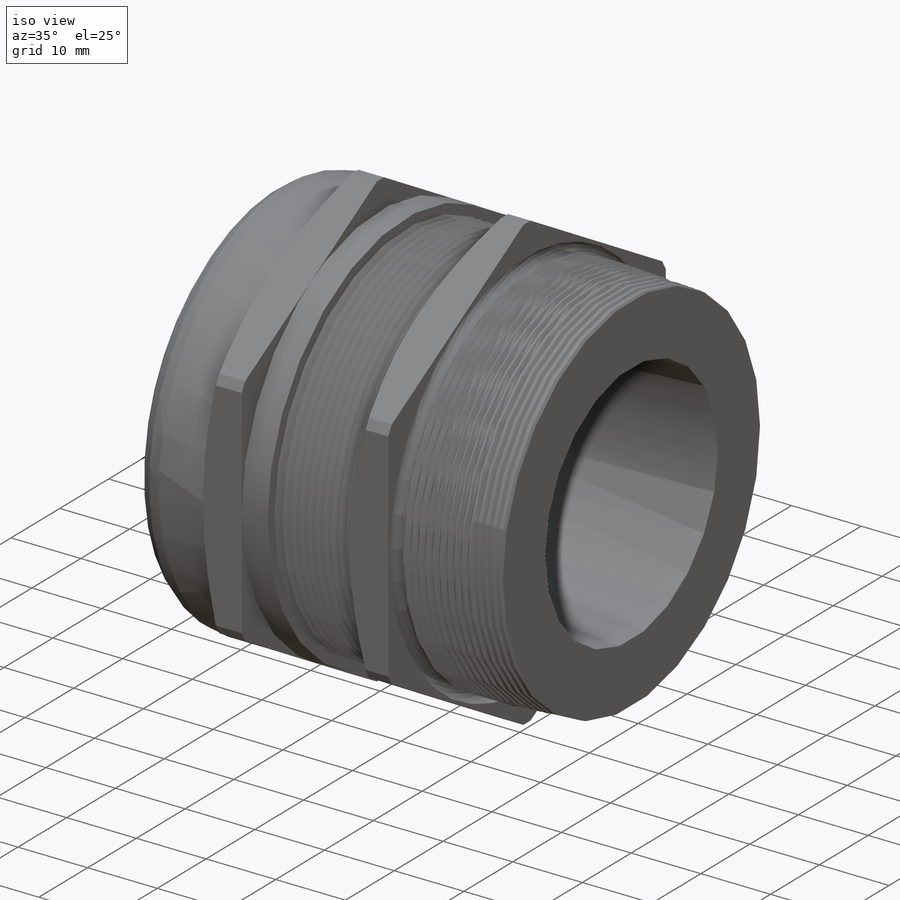
[diagram: iso view]
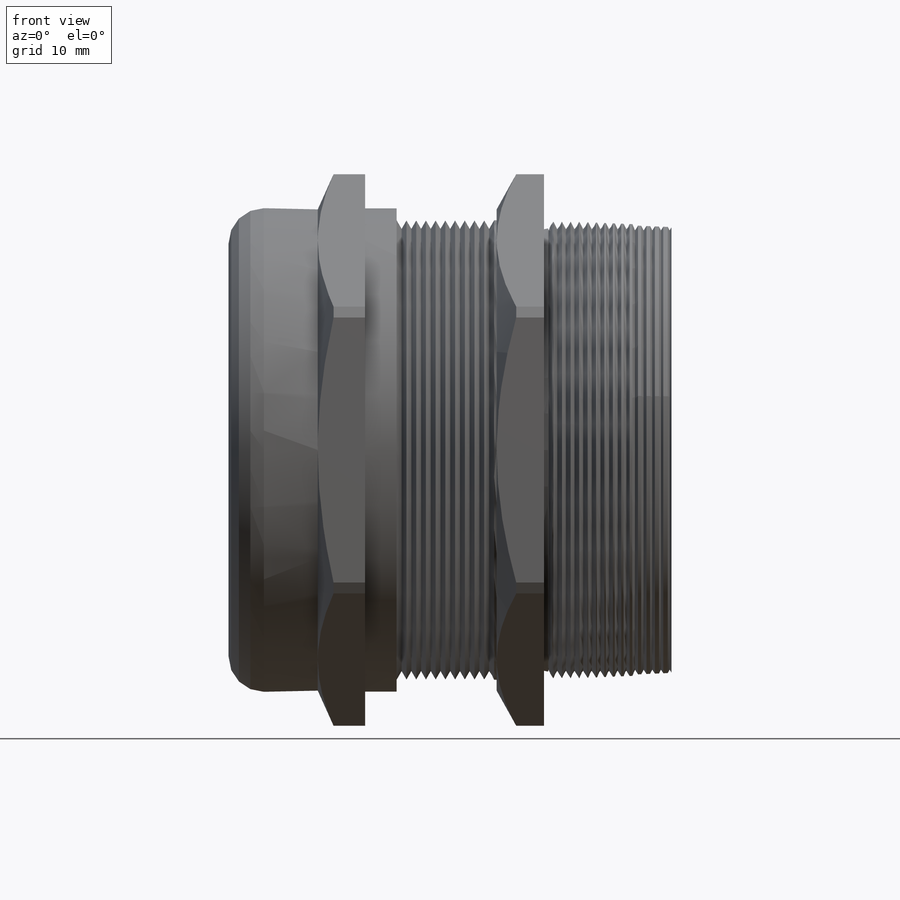
[diagram: front view]
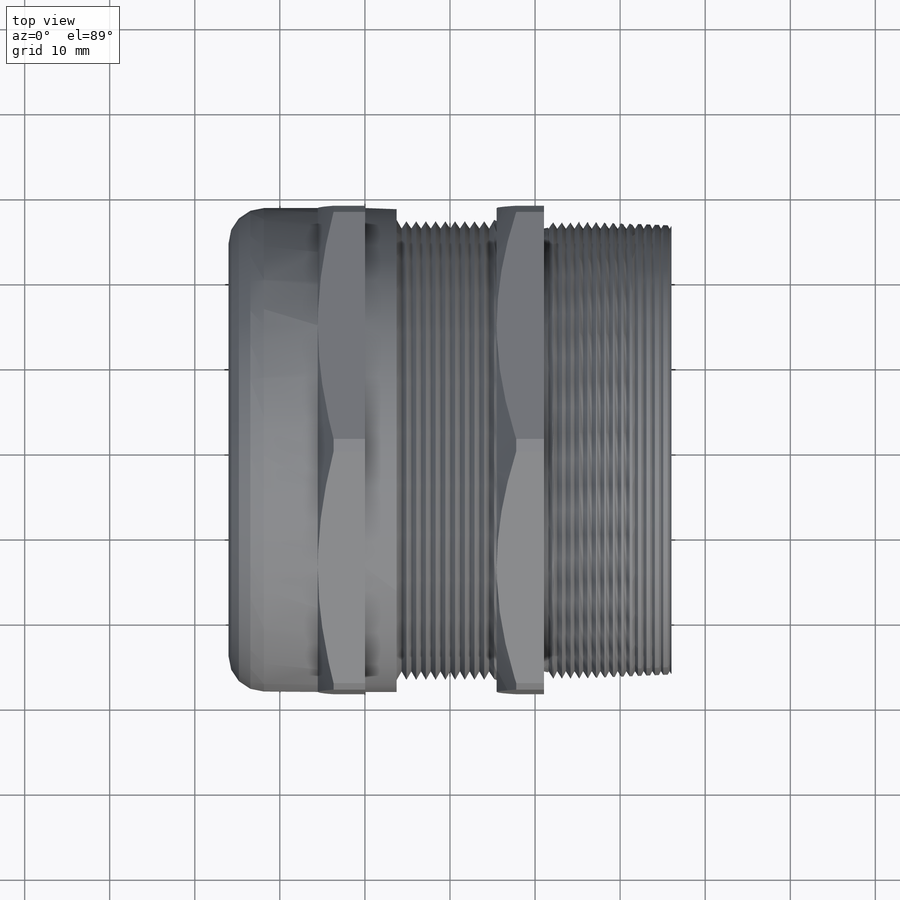
[diagram: top view]
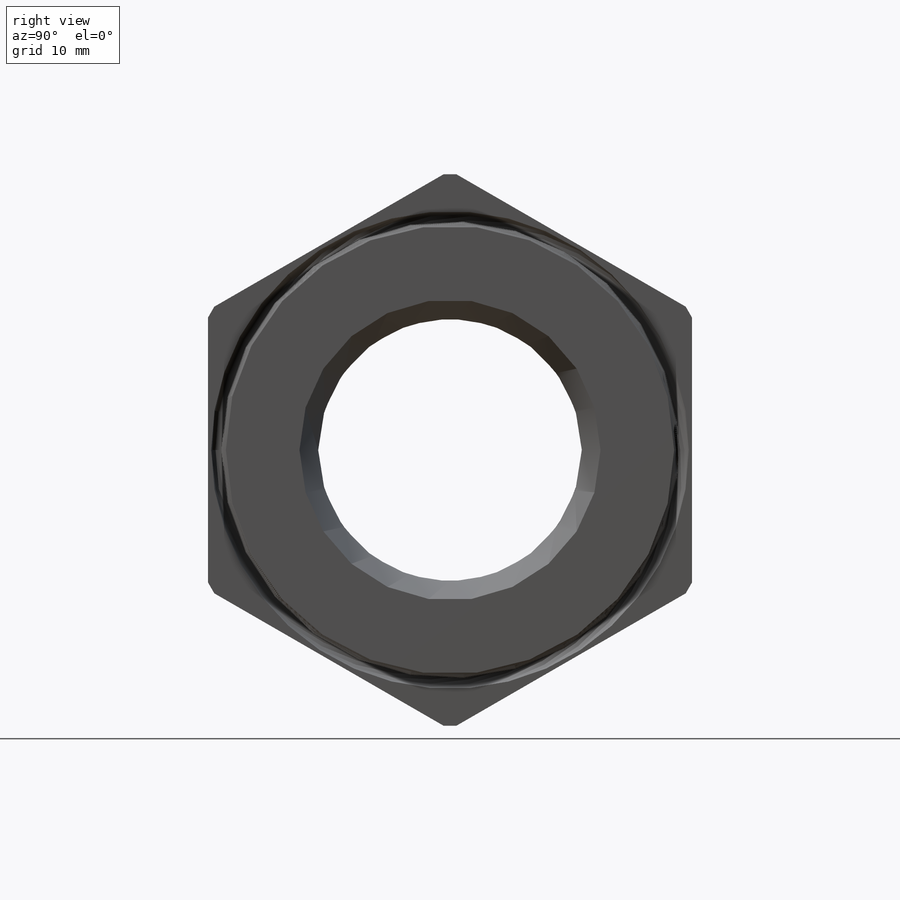
[diagram: right view]
SOLIDWORKS PART (.sldprt)
format: sldprt  version: not decoded by parser v0  size: 717,824 bytes
history: native  units: mm
features: sketch x15, revolve x4, cut_extrude x4, cut_revolve x3, pattern_linear x2, fillet x2, extrude x2, material x1, helix x1, plane x1, sweep x1, chamfer x1 + 1 further entry (+14 scaffold rows collapsed; 1 parser-record rows omitted)
feature tree (53):
  scaffold x14  (default folders/planes/origin — collapsed)
  material  "Material <not specified>"
  "Design Table"
  sketch  "Sketch2"  dims[c1.CableDia=30.988mm c1.D2=~34.342246mm c2.D2=2.5deg c2.B=37.084mm c2.D=14.986mm c2.NutWidth=5.5626mm c2.NutWidth1=5.5626mm c2.A=12.446mm c2.NPT=54.102mm c2.F/F1=~64.86144mm c2.D5=~7.894301mm c2.D4=10.4902mm c3.D5=3.7084mm c3.F/F1-=56.896mm c3.D7=~34.342246mm c3.D1=43.2816mm c3.D3=32.1564mm c4.D3=3.5deg]
  revolve  "Revolve1"  Angle=360deg
  sketch  "Sketch6"  dims[c1.F/F1=13.97mm c2.F/F1=56.896mm]
  cut_extrude  "Cut-Extrude2"  [1 undecoded]
  sketch  "Sketch7"
  cut_extrude  "Cut-Extrude3"  Depth=2.54mm
  sketch  "Sketch8"
  cut_extrude  "Cut-Extrude4"  Depth=2.54mm
  sketch  "Sketch9"
  cut_extrude  "Cut-Extrude5"  [1 undecoded]
  sketch  "Sketch13"  dims[D2=0.254mm D1=0.762mm]
  revolve  "Revolve3"  Angle=360deg
  sketch  "Sketch16"  dims[D2=0.254mm D1=0.762mm]
  revolve  "Revolve4"  Angle=360deg
  sketch  "Sketch14"  dims[c1.D1=~0.501984mm c2.D1=60.0deg c2.D2=~0.759387mm c3.D2=30.0deg c3.D3=1.016mm]
  cut_revolve  "Cut-Revolve1"  Angle=360deg
  pattern_linear  "LPattern1"  Count1=10 Count2=1 Spacing1=1.143mm Spacing2=50mm
  sketch  "Sketch15"  dims[c1.D1=~0.970618mm c2.D1=60.0deg c2.D2=~0.456125mm c3.D2=60.0deg c3.D3=1.016mm]
  cut_revolve  "Cut-Revolve2"  Angle=360deg
  pattern_linear  "LPattern2"  Count1=15 Count2=1 Spacing1=1.016mm Spacing2=50mm
  fillet  "Fillet1"  Radius=4.153408mm
  sketch  "Sketch3"  dims[c1.C=76.2mm c1.D1=~151.355923mm c2.D1=0.5deg c2.D2=~40.462802mm c2.D3=~1.659467mm c2.D4=~35.673792mm c2.D5=~15.133732mm c3.D5=~0.261706deg c4.D5=0.508mm c4.D2=0.762mm]
  parser-record x1  (decoder bookkeeping rows leaked as tree rows — omitted from the tree; the rows remain in map.json)
  revolve  "Revolve2"  Angle=360deg
  sketch  "Sketch4"
  helix  "Helix/Spiral1"  Pitch=70.74662mm revolution=35 taper=1deg
  plane  "Plane1"
  sketch  "Sketch5"  dims[D1=152.4mm]
  sweep  "Sweep1"
  sketch  "Sketch10"  dims[c1.D1=~37.451792mm c1.D2=~10.906252mm c2.D1=2.032mm c2.D2=0.8636mm]
  extrude  "Extrude1"  Depth=76.2mm
  fillet  "Fillet3"  Radius=0.127mm
  chamfer  "Chamfer1"  Distance=3.7084mm Angle=10deg
  sketch  "Sketch11"  dims[D1=14.986mm]
  extrude  "Extrude2"  Depth=0.635mm
  sketch  "Sketch17"  dims[D1=2.032mm D2=0.0254mm D3=0.254mm]
  cut_revolve  "Cut-Revolve3"  Angle=360deg
decode coverage: 28 of 35 modeling features carry decoded parameters; 1 rows unclassified (native names shown)
note: ~ marks probable driven/reference dimensions
note: 2 parameter values undecoded
note: suppression state not decoded; provenance and decode notes live in map.json
